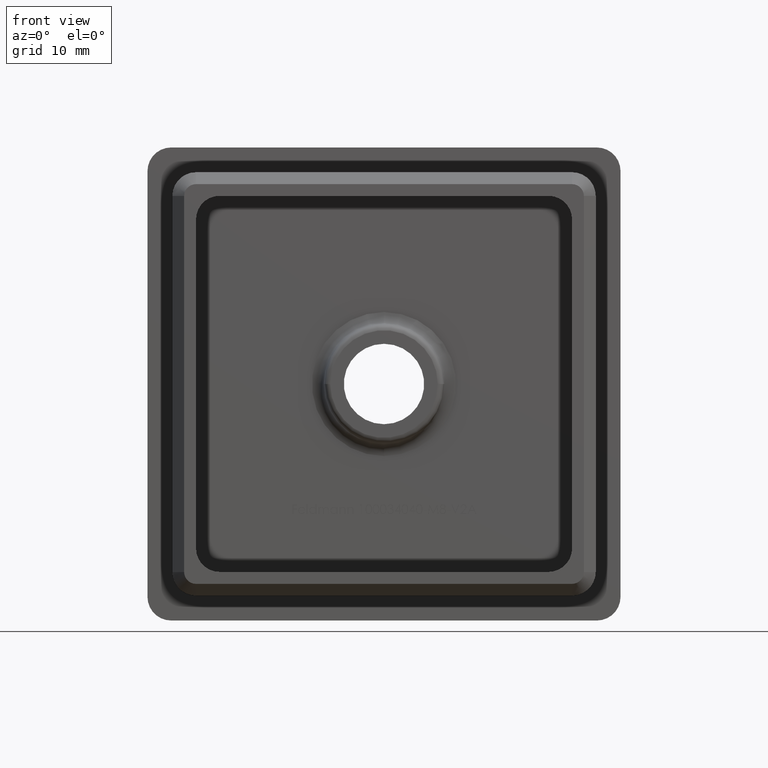
[diagram: clean part render]
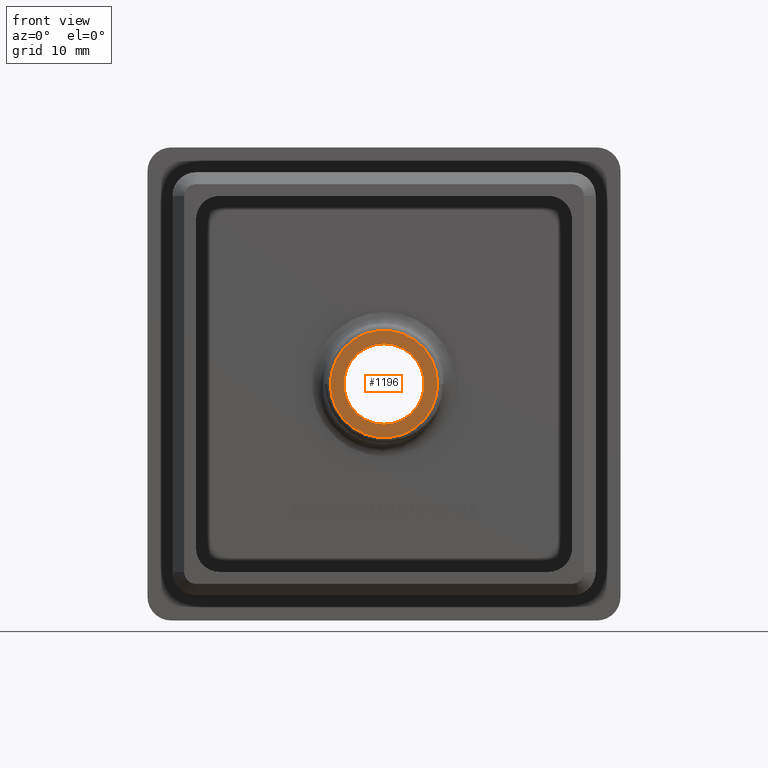
[diagram: same view with one face highlighted and labeled with its STEP entity id]
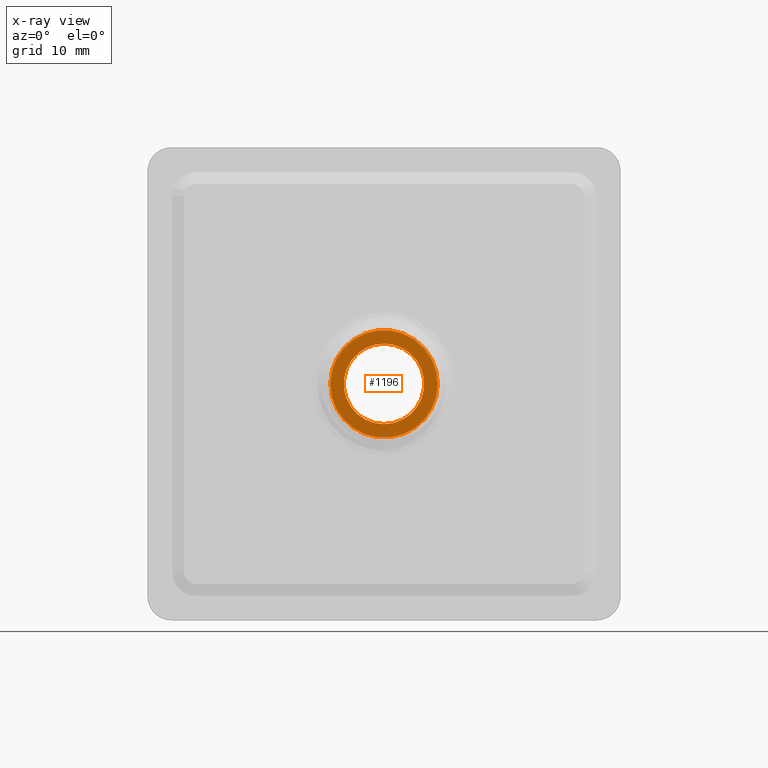
[diagram: x-ray of the same camera — body ghosted, the highlighted face saturated]
A machine part, front view. The second image highlights one B-rep face of the part: STEP entity #1196.
The next image is the same camera in x-ray: the body ghosted, the highlighted face saturated — about 0% of this face is hidden behind the body in this view.
In plain terms, the highlighted planar face has unit normal (-0, 1, 0).
Its self-contained STEP definition (entity closure, byte-faithful):
#45 = CARTESIAN_POINT ( 'NONE',  ( 6.613092715395704500E-016, -2.000000000000000400, 3.399999999999997200 ) ) ;
#266 = VERTEX_POINT ( 'NONE', #2543 ) ;
#551 = CARTESIAN_POINT ( 'NONE',  ( 2.449293598294706900E-016, -2.000000000000000400, 0.0000000000000000000 ) ) ;
#569 = DIRECTION ( 'NONE',  ( -0.0000000000000000000, -1.000000000000000000, -0.0000000000000000000 ) ) ;
#1075 = VERTEX_POINT ( 'NONE', #45 ) ;
#1196 = ADVANCED_FACE ( 'NONE', ( #16589, #6767 ), #16637, .F. ) ;
#1648 = CARTESIAN_POINT ( 'NONE',  ( 2.449293598294706900E-016, -2.000000000000000400, 0.0000000000000000000 ) ) ;
#1926 = CARTESIAN_POINT ( 'NONE',  ( 4.541834412991284400, -2.000000000000000000, 5.867139638213479300E-016 ) ) ;
#2110 = EDGE_CURVE ( 'NONE', #1075, #266, #17438, .T. ) ;
#2449 = CARTESIAN_POINT ( 'NONE',  ( 2.449293598294707400E-016, -2.000000000000000400, 0.0000000000000000000 ) ) ;
#2508 = CIRCLE ( 'NONE', #12830, 4.541834412991284400 ) ;
#2543 = CARTESIAN_POINT ( 'NONE',  ( 2.449293598294707400E-016, -2.000000000000000400, -3.399999999999996800 ) ) ;
#2755 = CARTESIAN_POINT ( 'NONE',  ( -4.541834412991284400, -2.000000000000000900, 0.0000000000000000000 ) ) ;
#4130 = EDGE_LOOP ( 'NONE', ( #7954, #12647 ) ) ;
#4351 = DIRECTION ( 'NONE',  ( -1.000000000000000000, -9.548583888345160900E-017, 0.0000000000000000000 ) ) ;
#4866 = DIRECTION ( 'NONE',  ( -0.0000000000000000000, -1.000000000000000000, -0.0000000000000000000 ) ) ;
#4870 = DIRECTION ( 'NONE',  ( 1.224646799147353500E-016, -1.000000000000000000, 0.0000000000000000000 ) ) ;
#5014 = EDGE_CURVE ( 'NONE', #9212, #13140, #10388, .T. ) ;
#6627 = EDGE_CURVE ( 'NONE', #13140, #9212, #2508, .T. ) ;
#6767 = FACE_OUTER_BOUND ( 'NONE', #4130, .T. ) ;
#7574 = DIRECTION ( 'NONE',  ( 0.0000000000000000000, 0.0000000000000000000, -1.000000000000000000 ) ) ;
#7954 = ORIENTED_EDGE ( 'NONE', *, *, #5014, .T. ) ;
#8104 = CARTESIAN_POINT ( 'NONE',  ( 2.449293598294707400E-016, -2.000000000000000400, 0.0000000000000000000 ) ) ;
#8171 = ORIENTED_EDGE ( 'NONE', *, *, #18285, .F. ) ;
#8217 = DIRECTION ( 'NONE',  ( -1.224646799147353500E-016, 1.000000000000000000, 0.0000000000000000000 ) ) ;
#8756 = AXIS2_PLACEMENT_3D ( 'NONE', #1648, #11450, #4351 ) ;
#9212 = VERTEX_POINT ( 'NONE', #2755 ) ;
#10388 = CIRCLE ( 'NONE', #8756, 4.541834412991284400 ) ;
#10532 = DIRECTION ( 'NONE',  ( 0.0000000000000000000, 0.0000000000000000000, -1.000000000000000000 ) ) ;
#11216 = ORIENTED_EDGE ( 'NONE', *, *, #2110, .F. ) ;
#11450 = DIRECTION ( 'NONE',  ( 1.224646799147353500E-016, -1.000000000000000000, 0.0000000000000000000 ) ) ;
#11451 = AXIS2_PLACEMENT_3D ( 'NONE', #2449, #4866, #10532 ) ;
#11640 = EDGE_LOOP ( 'NONE', ( #8171, #11216 ) ) ;
#12502 = DIRECTION ( 'NONE',  ( -1.000000000000000000, -1.224646799147353500E-016, 0.0000000000000000000 ) ) ;
#12647 = ORIENTED_EDGE ( 'NONE', *, *, #6627, .T. ) ;
#12830 = AXIS2_PLACEMENT_3D ( 'NONE', #551, #4870, #17631 ) ;
#13140 = VERTEX_POINT ( 'NONE', #1926 ) ;
#13174 = AXIS2_PLACEMENT_3D ( 'NONE', #16223, #569, #7574 ) ;
#15197 = CIRCLE ( 'NONE', #11451, 3.399999999999996800 ) ;
#16223 = CARTESIAN_POINT ( 'NONE',  ( 2.449293598294707400E-016, -2.000000000000000400, 0.0000000000000000000 ) ) ;
#16589 = FACE_BOUND ( 'NONE', #11640, .T. ) ;
#16637 = PLANE ( 'NONE',  #18267 ) ;
#17438 = CIRCLE ( 'NONE', #13174, 3.399999999999996800 ) ;
#17631 = DIRECTION ( 'NONE',  ( -1.000000000000000000, -9.548583888345160900E-017, 0.0000000000000000000 ) ) ;
#18267 = AXIS2_PLACEMENT_3D ( 'NONE', #8104, #8217, #12502 ) ;
#18285 = EDGE_CURVE ( 'NONE', #266, #1075, #15197, .T. ) ;